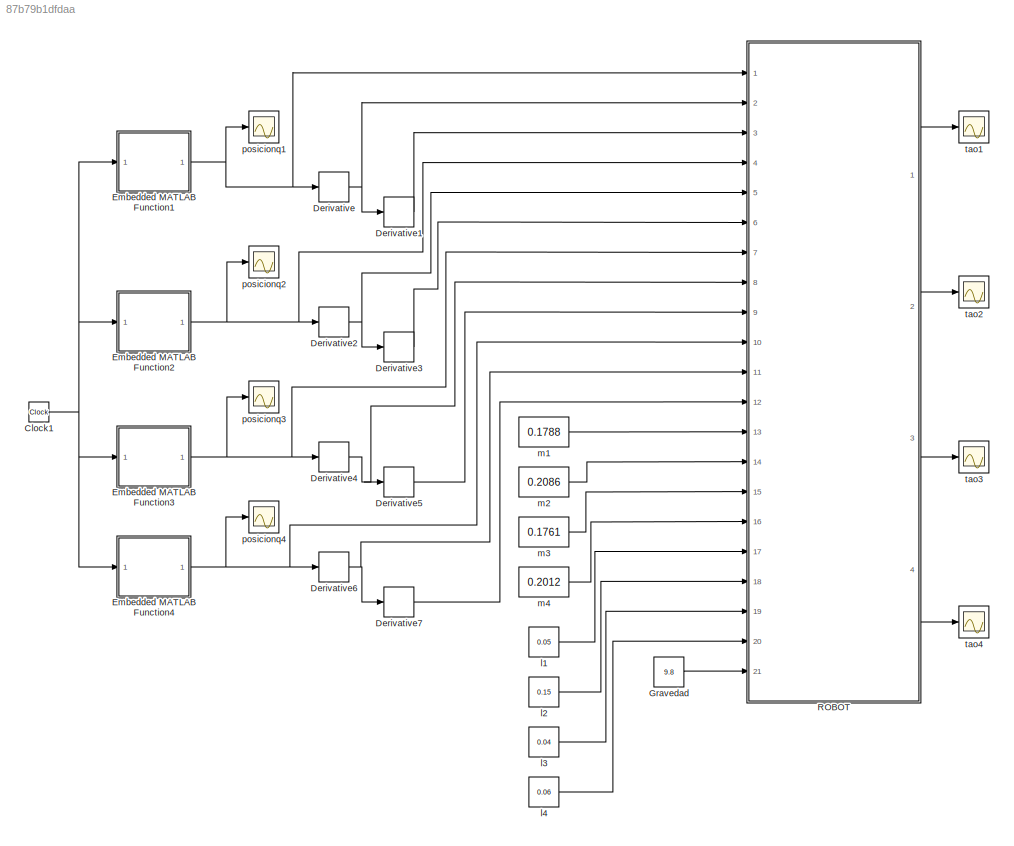
MODEL slx_87b79b1dfdaa
KIND model
CONFIG AbsTol = auto
CONFIG EnableMultiTasking = off
CONFIG FixedStep = auto
CONFIG MaxStep = auto
CONFIG MinStep = auto
CONFIG RelTol = 1e-3
CONFIG SampleTimeConstraint = Unconstrained
CONFIG SolverName = VariableStepAuto
CONFIG StartTime = 0.0
CONFIG StopTime = 70
BLOCK [Clock] Clock1
  Decimation = 1000
BLOCK [Derivative] Derivative
BLOCK [Derivative] Derivative1
BLOCK [Derivative] Derivative2
BLOCK [Derivative] Derivative3
BLOCK [Derivative] Derivative4
BLOCK [Derivative] Derivative5
BLOCK [Derivative] Derivative6
BLOCK [Derivative] Derivative7
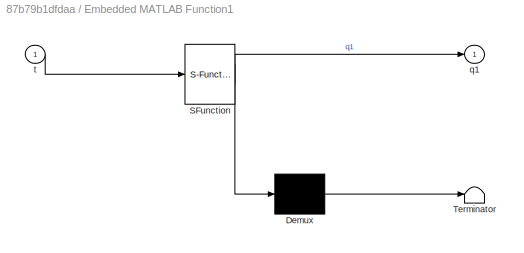
BLOCK [SubSystem] Embedded MATLAB Function1
  ErrorFcn = Stateflow.Translate.translate
  PermitHierarchicalResolution = ExplicitOnly
  Ports = [1, 1]
  RequestExecContextInheritance = off
  SFBlockType = MATLAB Function
  TreatAsAtomicUnit = on
BLOCK [Demux] Embedded MATLAB Function1/ Demux 
  Outputs = 1
  Ports = [1, 1]
BLOCK [S-Function] Embedded MATLAB Function1/ SFunction 
  EnableBusSupport = on
  FunctionName = sf_sfun
  PortCounts = [1 2]
  Ports = [1, 2]
  SFcnIsStateOwnerBlock = off
  SFunctionDeploymentMode = off
  Tag = Stateflow S-Function 4
BLOCK [Terminator] Embedded MATLAB Function1/ Terminator 
BLOCK [Outport] Embedded MATLAB Function1/q1
  VectorParamsAs1DForOutWhenUnconnected = off
BLOCK [Inport] Embedded MATLAB Function1/t
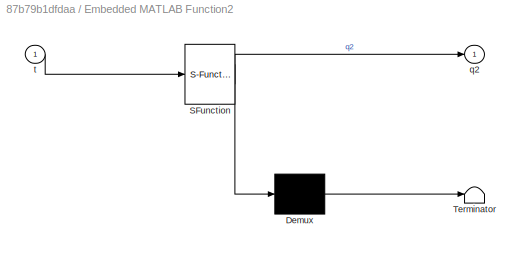
BLOCK [SubSystem] Embedded MATLAB Function2
  ErrorFcn = Stateflow.Translate.translate
  PermitHierarchicalResolution = ExplicitOnly
  Ports = [1, 1]
  RequestExecContextInheritance = off
  SFBlockType = MATLAB Function
  TreatAsAtomicUnit = on
BLOCK [Demux] Embedded MATLAB Function2/ Demux 
  Outputs = 1
  Ports = [1, 1]
BLOCK [S-Function] Embedded MATLAB Function2/ SFunction 
  EnableBusSupport = on
  FunctionName = sf_sfun
  PortCounts = [1 2]
  Ports = [1, 2]
  SFcnIsStateOwnerBlock = off
  SFunctionDeploymentMode = off
  Tag = Stateflow S-Function 5
BLOCK [Terminator] Embedded MATLAB Function2/ Terminator 
BLOCK [Outport] Embedded MATLAB Function2/q2
  VectorParamsAs1DForOutWhenUnconnected = off
BLOCK [Inport] Embedded MATLAB Function2/t
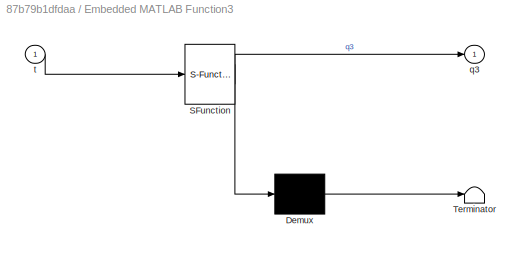
BLOCK [SubSystem] Embedded MATLAB Function3
  ErrorFcn = Stateflow.Translate.translate
  PermitHierarchicalResolution = ExplicitOnly
  Ports = [1, 1]
  RequestExecContextInheritance = off
  SFBlockType = MATLAB Function
  TreatAsAtomicUnit = on
BLOCK [Demux] Embedded MATLAB Function3/ Demux 
  Outputs = 1
  Ports = [1, 1]
BLOCK [S-Function] Embedded MATLAB Function3/ SFunction 
  EnableBusSupport = on
  FunctionName = sf_sfun
  PortCounts = [1 2]
  Ports = [1, 2]
  SFcnIsStateOwnerBlock = off
  SFunctionDeploymentMode = off
  Tag = Stateflow S-Function 7
BLOCK [Terminator] Embedded MATLAB Function3/ Terminator 
BLOCK [Outport] Embedded MATLAB Function3/q3
  VectorParamsAs1DForOutWhenUnconnected = off
BLOCK [Inport] Embedded MATLAB Function3/t
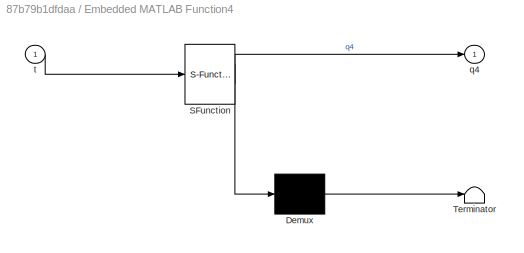
BLOCK [SubSystem] Embedded MATLAB Function4
  ErrorFcn = Stateflow.Translate.translate
  PermitHierarchicalResolution = ExplicitOnly
  Ports = [1, 1]
  RequestExecContextInheritance = off
  SFBlockType = MATLAB Function
  TreatAsAtomicUnit = on
BLOCK [Demux] Embedded MATLAB Function4/ Demux 
  Outputs = 1
  Ports = [1, 1]
BLOCK [S-Function] Embedded MATLAB Function4/ SFunction 
  EnableBusSupport = on
  FunctionName = sf_sfun
  PortCounts = [1 2]
  Ports = [1, 2]
  SFcnIsStateOwnerBlock = off
  SFunctionDeploymentMode = off
  Tag = Stateflow S-Function 1
BLOCK [Terminator] Embedded MATLAB Function4/ Terminator 
BLOCK [Outport] Embedded MATLAB Function4/q4
  VectorParamsAs1DForOutWhenUnconnected = off
BLOCK [Inport] Embedded MATLAB Function4/t
BLOCK [Constant] Gravedad
  Value = 9.8
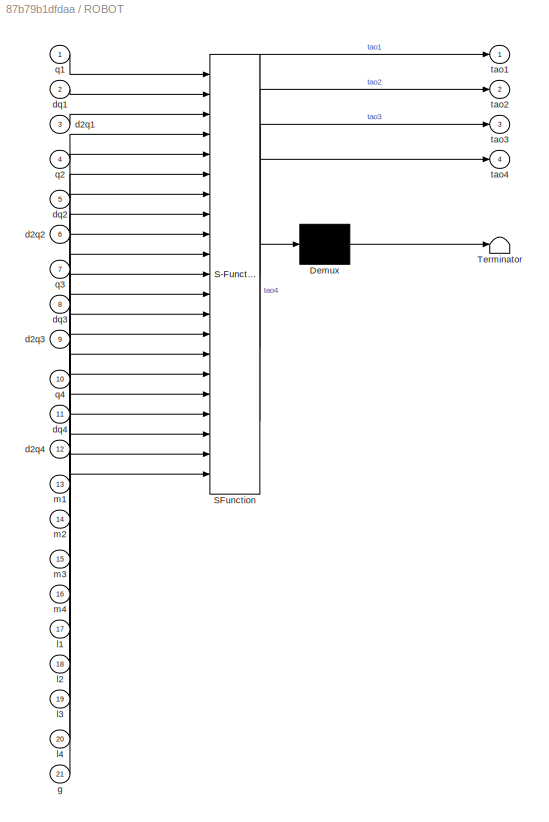
BLOCK [SubSystem] ROBOT
  ErrorFcn = Stateflow.Translate.translate
  PermitHierarchicalResolution = ExplicitOnly
  Ports = [21, 4]
  RequestExecContextInheritance = off
  SFBlockType = MATLAB Function
  TreatAsAtomicUnit = on
BLOCK [Demux] ROBOT/ Demux 
  Outputs = 1
  Ports = [1, 1]
BLOCK [S-Function] ROBOT/ SFunction 
  EnableBusSupport = on
  FunctionName = sf_sfun
  PortCounts = [21 5]
  Ports = [21, 5]
  SFcnIsStateOwnerBlock = off
  SFunctionDeploymentMode = off
  Tag = Stateflow S-Function 6
BLOCK [Terminator] ROBOT/ Terminator 
BLOCK [Inport] ROBOT/d2q1
  Port = 3
BLOCK [Inport] ROBOT/d2q2
  Port = 6
BLOCK [Inport] ROBOT/d2q3
  Port = 9
BLOCK [Inport] ROBOT/d2q4
  Port = 12
BLOCK [Inport] ROBOT/dq1
  Port = 2
BLOCK [Inport] ROBOT/dq2
  Port = 5
BLOCK [Inport] ROBOT/dq3
  Port = 8
BLOCK [Inport] ROBOT/dq4
  Port = 11
BLOCK [Inport] ROBOT/g
  Port = 21
BLOCK [Inport] ROBOT/l1
  Port = 17
BLOCK [Inport] ROBOT/l2
  Port = 18
BLOCK [Inport] ROBOT/l3
  Port = 19
BLOCK [Inport] ROBOT/l4
  Port = 20
BLOCK [Inport] ROBOT/m1
  Port = 13
BLOCK [Inport] ROBOT/m2
  Port = 14
BLOCK [Inport] ROBOT/m3
  Port = 15
BLOCK [Inport] ROBOT/m4
  Port = 16
BLOCK [Inport] ROBOT/q1
BLOCK [Inport] ROBOT/q2
  Port = 4
BLOCK [Inport] ROBOT/q3
  Port = 7
BLOCK [Inport] ROBOT/q4
  Port = 10
BLOCK [Outport] ROBOT/tao1
BLOCK [Outport] ROBOT/tao2
  Port = 2
BLOCK [Outport] ROBOT/tao3
  Port = 3
BLOCK [Outport] ROBOT/tao4
  Port = 4
BLOCK [Constant] l1
  Value = 0.05
BLOCK [Constant] l2
  Value = 0.15
BLOCK [Constant] l3
  Value = 0.04
BLOCK [Constant] l4
  Value = 0.06
BLOCK [Constant] m1
  Value = 0.1788
BLOCK [Constant] m2
  Value = 0.2086
BLOCK [Constant] m3
  Value = 0.1761
BLOCK [Constant] m4
  Value = 0.2012
BLOCK [Scope] posicionq1
  Floating = off
  NumInputPorts = 1
  Ports = [1]
  ScopeSpecificationString = Simulink.scopes.TimeScopeBlockCfg('CurrentConfiguration', extmgr.ConfigurationSet(extmgr.Configuration('Core','General UI',true,'FigureColor',[1 1 1]),extmgr.Configuration('Core','Source UI',true),extmgr.Configuration('Sources','WiredSimulink',true,'DataLoggingSaveFormat','StructureWithTime','DataLoggingLimitDataPoints',true,'DataLoggingDecimation','1','DataLoggingDecimateData',true,'DataLoggingVa...<+1913ch>
BLOCK [Scope] posicionq2
  Floating = off
  NumInputPorts = 1
  Ports = [1]
  ScopeSpecificationString = Simulink.scopes.TimeScopeBlockCfg('CurrentConfiguration', extmgr.ConfigurationSet(extmgr.Configuration('Core','General UI',true,'FigureColor',[1 1 1]),extmgr.Configuration('Core','Source UI',true),extmgr.Configuration('Sources','WiredSimulink',true,'DataLoggingSaveFormat','StructureWithTime','DataLoggingLimitDataPoints',true,'DataLoggingDecimation','1','DataLoggingDecimateData',true,'DataLoggingVa...<+1917ch>
BLOCK [Scope] posicionq3
  Floating = off
  NumInputPorts = 1
  Ports = [1]
  ScopeSpecificationString = Simulink.scopes.TimeScopeBlockCfg('CurrentConfiguration', extmgr.ConfigurationSet(extmgr.Configuration('Core','General UI',true,'FigureColor',[1 1 1]),extmgr.Configuration('Core','Source UI',true),extmgr.Configuration('Sources','WiredSimulink',true,'DataLoggingSaveFormat','StructureWithTime','DataLoggingLimitDataPoints',true,'DataLoggingDecimation','1','DataLoggingDecimateData',true,'DataLoggingVa...<+1917ch>
BLOCK [Scope] posicionq4
  Floating = off
  NumInputPorts = 1
  Ports = [1]
  ScopeSpecificationString = Simulink.scopes.TimeScopeBlockCfg('CurrentConfiguration', extmgr.ConfigurationSet(extmgr.Configuration('Core','General UI',true,'FigureColor',[1 1 1]),extmgr.Configuration('Core','Source UI',true),extmgr.Configuration('Sources','WiredSimulink',true,'DataLoggingSaveFormat','StructureWithTime','DataLoggingLimitDataPoints',true,'DataLoggingDecimation','1','DataLoggingDecimateData',true,'DataLoggingVa...<+1915ch>
BLOCK [Scope] tao1
  Floating = off
  NumInputPorts = 1
  Ports = [1]
  ScopeSpecificationString = Simulink.scopes.TimeScopeBlockCfg('CurrentConfiguration', extmgr.ConfigurationSet(extmgr.Configuration('Core','General UI',true,'FigureColor',[1 1 1]),extmgr.Configuration('Core','Source UI',true),extmgr.Configuration('Sources','WiredSimulink',true,'DataLoggingSaveFormat','StructureWithTime','DataLoggingLimitDataPoints',true,'DataLoggingDecimation','1','DataLoggingDecimateData',true,'DataLoggingVa...<+1902ch>
BLOCK [Scope] tao2
  Floating = off
  NumInputPorts = 1
  Ports = [1]
  ScopeSpecificationString = Simulink.scopes.TimeScopeBlockCfg('CurrentConfiguration', extmgr.ConfigurationSet(extmgr.Configuration('Core','General UI',true,'FigureColor',[1 1 1]),extmgr.Configuration('Core','Source UI',true),extmgr.Configuration('Sources','WiredSimulink',true,'DataLoggingSaveFormat','StructureWithTime','DataLoggingLimitDataPoints',true,'DataLoggingDecimation','1','DataLoggingDecimateData',true,'DataLoggingVa...<+1900ch>
BLOCK [Scope] tao3
  Floating = off
  NumInputPorts = 1
  Ports = [1]
  ScopeSpecificationString = Simulink.scopes.TimeScopeBlockCfg('CurrentConfiguration', extmgr.ConfigurationSet(extmgr.Configuration('Core','General UI',true,'FigureColor',[1 1 1]),extmgr.Configuration('Core','Source UI',true),extmgr.Configuration('Sources','WiredSimulink',true,'DataLoggingSaveFormat','StructureWithTime','DataLoggingLimitDataPoints',true,'DataLoggingDecimation','1','DataLoggingDecimateData',true,'DataLoggingVa...<+1902ch>
BLOCK [Scope] tao4
  Floating = off
  NumInputPorts = 1
  Ports = [1]
  ScopeSpecificationString = Simulink.scopes.TimeScopeBlockCfg('CurrentConfiguration', extmgr.ConfigurationSet(extmgr.Configuration('Core','General UI',true,'FigureColor',[1 1 1]),extmgr.Configuration('Core','Source UI',true),extmgr.Configuration('Sources','WiredSimulink',true,'DataLoggingSaveFormat','StructureWithTime','DataLoggingLimitDataPoints',true,'DataLoggingDecimation','1','DataLoggingDecimateData',true),extmgr.Config...<+1857ch>
NET Clock1:1 -> Embedded MATLAB Function1:1, Embedded MATLAB Function2:1, Embedded MATLAB Function3:1, Embedded MATLAB Function4:1
LINE Derivative1:1 -> ROBOT:3
NET Derivative2:1 -> Derivative3:1, ROBOT:5
LINE Derivative3:1 -> ROBOT:6
NET Derivative4:1 -> Derivative5:1, ROBOT:8
LINE Derivative5:1 -> ROBOT:9
NET Derivative6:1 -> Derivative7:1, ROBOT:11
LINE Derivative7:1 -> ROBOT:12
NET Derivative:1 -> Derivative1:1, ROBOT:2
NET Embedded MATLAB Function1:1 -> Derivative:1, ROBOT:1, posicionq1:1
NET Embedded MATLAB Function2:1 -> Derivative2:1, ROBOT:4, posicionq2:1
NET Embedded MATLAB Function3:1 -> Derivative4:1, ROBOT:7, posicionq3:1
NET Embedded MATLAB Function4:1 -> Derivative6:1, ROBOT:10, posicionq4:1
LINE Gravedad:1 -> ROBOT:21
LINE ROBOT:1 -> tao1:1
LINE ROBOT:2 -> tao2:1
LINE ROBOT:3 -> tao3:1
LINE ROBOT:4 -> tao4:1
LINE l1:1 -> ROBOT:17
LINE l2:1 -> ROBOT:18
LINE l3:1 -> ROBOT:19
LINE l4:1 -> ROBOT:20
LINE m1:1 -> ROBOT:13
LINE m2:1 -> ROBOT:14
LINE m3:1 -> ROBOT:15
LINE m4:1 -> ROBOT:16
note: NET lines group one-source signal fan-out (src -> all destinations, sorted); 1:1 wires keep LINE
CHART Embedded
MATLAB Function4 states=1 transitions=1
  STATE_LABEL 'eML_blk_kernel()'
  STATE_LABEL 'SCRIPT:\nfunction q4 = posq4(t)\n% This block supports an embeddable subset of the MATLAB language.\n% See the help menu for details. \n\nif (t>=32)  % Si el t>=tmax, se repite una vez la rutina\n    t=t-32;\nend\n\nif(t<21) % Movimiento 1\n    t_inic = 15; % Tiempo en que inicia\n    tf = 4;     % Tiempo en que termina\n    y_ini = 3.14159;\n    y_f = 0;\nelseif (t>=21 && t<27) % Movimiento 2\n    t_inic = 21;\n...<+538ch>'
CHART Embedded
MATLAB Function1 states=1 transitions=1
  STATE_LABEL 'eML_blk_kernel()'
  STATE_LABEL 'SCRIPT:\nfunction q1 = posq1(t)\n% This block supports an embeddable subset of the MATLAB language.\n% See the help menu for details. \n\nif (t>=17)  % Si el t>=tmax, se repite otra vez la rutina\n    t=t-17;\nend\n\nif(t<6) % Movimiento 1\n    t_inic = 0; % Tiempo en que inicia\n    tf = 4;     % Tiempo en que termina\n    y_ini = 0;  % Posicion articular inicial (rad)\n    y_f = -3.14159;    % Posicion artic...<+725ch>'
CHART Embedded
MATLAB Function2 states=1 transitions=1
  STATE_LABEL 'eML_blk_kernel()'
  STATE_LABEL 'SCRIPT:\nfunction q2 = posq2(t)\n% This block supports an embeddable subset of the MATLAB language.\n% See the help menu for details. \n\nif (t>=22)  % Si el t>=tmax, se repite una vez la rutina\n    t=t-22;\nend\n\nif(t<11) % Movimiento 1\n    t_inic = 5; % Tiempo en que inicia\n    tf = 4;     % Tiempo en que termina\n    y_ini = 0.785;\n    y_f = -1.570;\nelseif (t>=11 && t<17) % Movimiento 2\n    t_inic = 11...<+557ch>'
CHART ROBOT states=1 transitions=1
  STATE_LABEL 'eML_blk_kernel()'
  STATE_LABEL 'SCRIPT:\nfunction [tao1, tao2, tao3, tao4] = EulerLagrange(q1, dq1, d2q1, q2, dq2, d2q2, q3, dq3, d2q3, q4, dq4, d2q4, m1, m2, m3, m4, l1, l2, l3, l4, g)\n%tao1= (40812255641599999*d2q1)/16777216 - 999120000*dq2^2*cos(q1)^2 + 382320000*dq3^2*cos(q1)^2 + 191160000*dq3^2*cos(q2)^2 - 120720000*dq4^2*cos(q2)^2 + 120720000*dq4^2*cos(q3)^2 + (52562346639359997*dq2^2*sin(2*q1))/67108864 - (4500767812266667...<+3608ch>'
CHART Embedded
MATLAB Function3 states=1 transitions=1
  STATE_LABEL 'eML_blk_kernel()'
  STATE_LABEL 'SCRIPT:\nfunction q3 = posq3(t)\n% This block supports an embeddable subset of the MATLAB language.\n% See the help menu for details. \n\nif (t>=27)  % Si el t>=tmax, se repite una vez la rutina\n    t=t-27;\nend\n\nif(t<16) % Movimiento 1\n    t_inic = 10; % Tiempo en que inicia\n    tf = 4;     % Tiempo en que termina\n    y_ini = 1.570;\n    y_f = -0.785;\nelseif (t>=16 && t<22) % Movimiento 2\n    t_inic = 1...<+555ch>'
CHART  states=0 transitions=0
CHART  states=0 transitions=0
CHART  states=0 transitions=0
CHART  states=0 transitions=0
CHART  states=0 transitions=0
